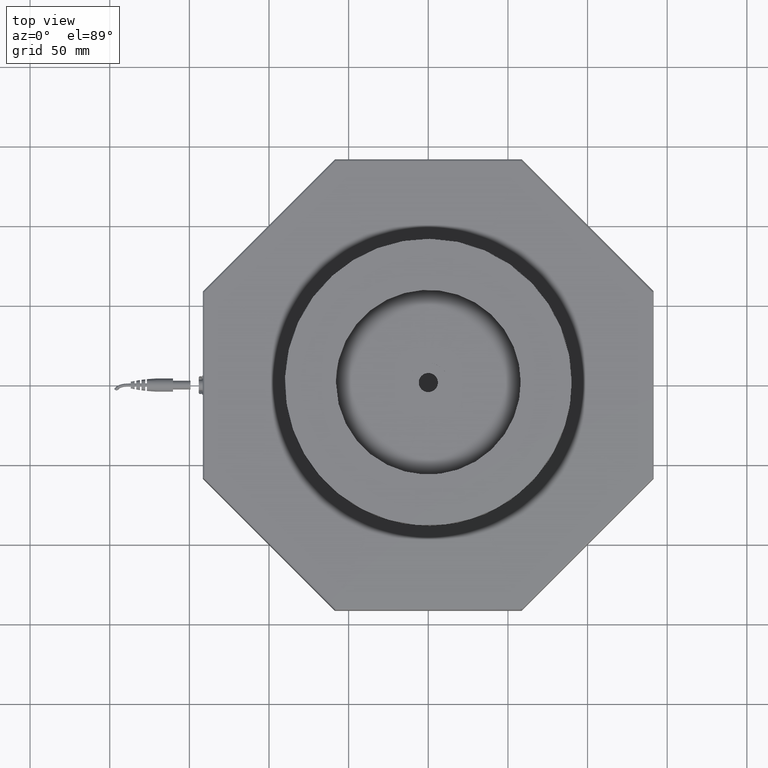
[diagram: clean part render]
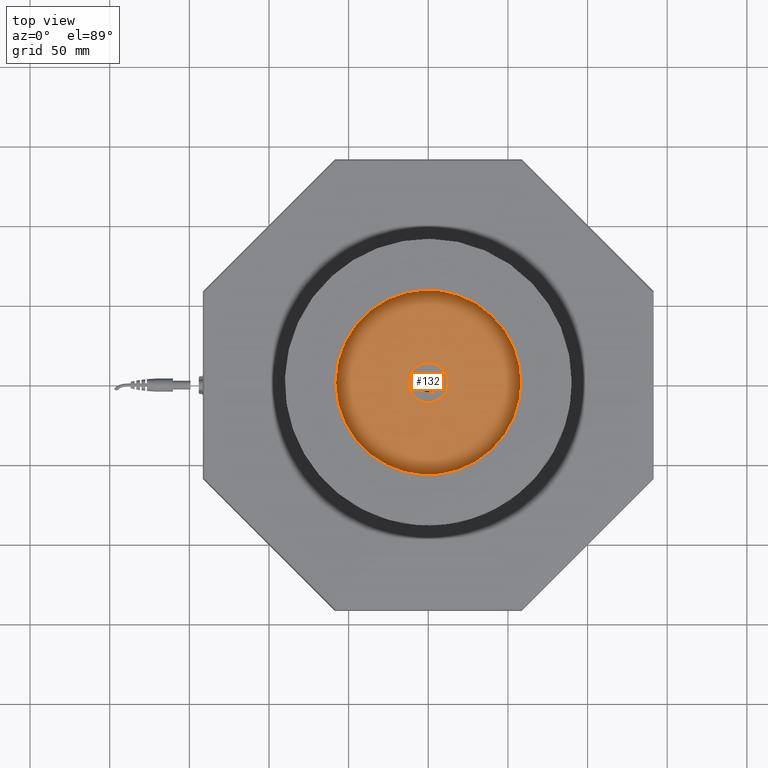
[diagram: same view with one face highlighted and labeled with its STEP entity id]
A machine part, top view. The second image highlights one B-rep face of the part: STEP entity #132.
In plain terms, the highlighted planar face has unit normal (0, 0, 1).
Its self-contained STEP definition (entity closure, byte-faithful):
#132=ADVANCED_FACE('',(#493,#364),#4812,.T.);
#364=FACE_BOUND('',#817,.T.);
#493=FACE_OUTER_BOUND('',#816,.T.);
#816=EDGE_LOOP('',(#1534));
#817=EDGE_LOOP('',(#1535));
#1534=ORIENTED_EDGE('',*,*,#2830,.F.);
#1535=ORIENTED_EDGE('',*,*,#2836,.T.);
#2830=EDGE_CURVE('',#4286,#4286,#3930,.T.);
#2836=EDGE_CURVE('',#4291,#4291,#3935,.T.);
#3930=(
BOUNDED_CURVE()
B_SPLINE_CURVE(2,(#8132,#8133,#8134,#8135,#8136,#8137,#8138,#8139,#8140),
 .UNSPECIFIED.,.T.,.F.)
B_SPLINE_CURVE_WITH_KNOTS((3,2,2,2,3),(-364.424747816416,-273.318560862312,
-182.212373908208,-91.106186954104,0.),.UNSPECIFIED.)
CURVE()
GEOMETRIC_REPRESENTATION_ITEM()
RATIONAL_B_SPLINE_CURVE((1.,0.707106781186548,1.,0.707106781186548,1.,0.707106781186548,
1.,0.707106781186548,1.))
REPRESENTATION_ITEM('')
);
#3935=(
BOUNDED_CURVE()
B_SPLINE_CURVE(2,(#8179,#8180,#8181,#8182,#8183,#8184,#8185,#8186,#8187),
 .UNSPECIFIED.,.T.,.F.)
B_SPLINE_CURVE_WITH_KNOTS((3,2,2,2,3),(0.,19.633313084028,39.2666261680561,
58.8999392520841,78.5332523361122),.UNSPECIFIED.)
CURVE()
GEOMETRIC_REPRESENTATION_ITEM()
RATIONAL_B_SPLINE_CURVE((1.,0.707106781186548,1.,0.707106781186548,1.,0.707106781186548,
1.,0.707106781186548,1.))
REPRESENTATION_ITEM('')
);
#4286=VERTEX_POINT('',#8088);
#4291=VERTEX_POINT('',#8093);
#4812=PLANE('',#4997);
#4997=AXIS2_PLACEMENT_3D('',#7972,#5167,$);
#5167=DIRECTION('',(0.,0.,1.));
#7972=CARTESIAN_POINT('',(58.,58.,101.));
#8088=CARTESIAN_POINT('',(-58.,1.42059028701093E-14,101.));
#8093=CARTESIAN_POINT('',(12.5,3.05311331771918E-16,101.));
#8132=CARTESIAN_POINT('',(-58.,0.,101.));
#8133=CARTESIAN_POINT('',(-58.,58.,101.));
#8134=CARTESIAN_POINT('',(1.0654427152582E-14,58.,101.));
#8135=CARTESIAN_POINT('',(58.,58.,101.));
#8136=CARTESIAN_POINT('',(58.,-7.10295143505465E-15,101.));
#8137=CARTESIAN_POINT('',(58.,-58.,101.));
#8138=CARTESIAN_POINT('',(-3.55147571752732E-15,-58.,101.));
#8139=CARTESIAN_POINT('',(-58.,-58.,101.));
#8140=CARTESIAN_POINT('',(-58.,0.,101.));
#8179=CARTESIAN_POINT('',(12.5,3.05311331771918E-16,101.));
#8180=CARTESIAN_POINT('',(12.5,-12.5,101.));
#8181=CARTESIAN_POINT('',(-2.29621274840129E-15,-12.5,101.));
#8182=CARTESIAN_POINT('',(-12.5,-12.5,101.));
#8183=CARTESIAN_POINT('',(-12.5,1.53080849893419E-15,101.));
#8184=CARTESIAN_POINT('',(-12.5,12.5,101.));
#8185=CARTESIAN_POINT('',(7.65404249467096E-16,12.5,101.));
#8186=CARTESIAN_POINT('',(12.5,12.5,101.));
#8187=CARTESIAN_POINT('',(12.5,3.05311331771918E-16,101.));